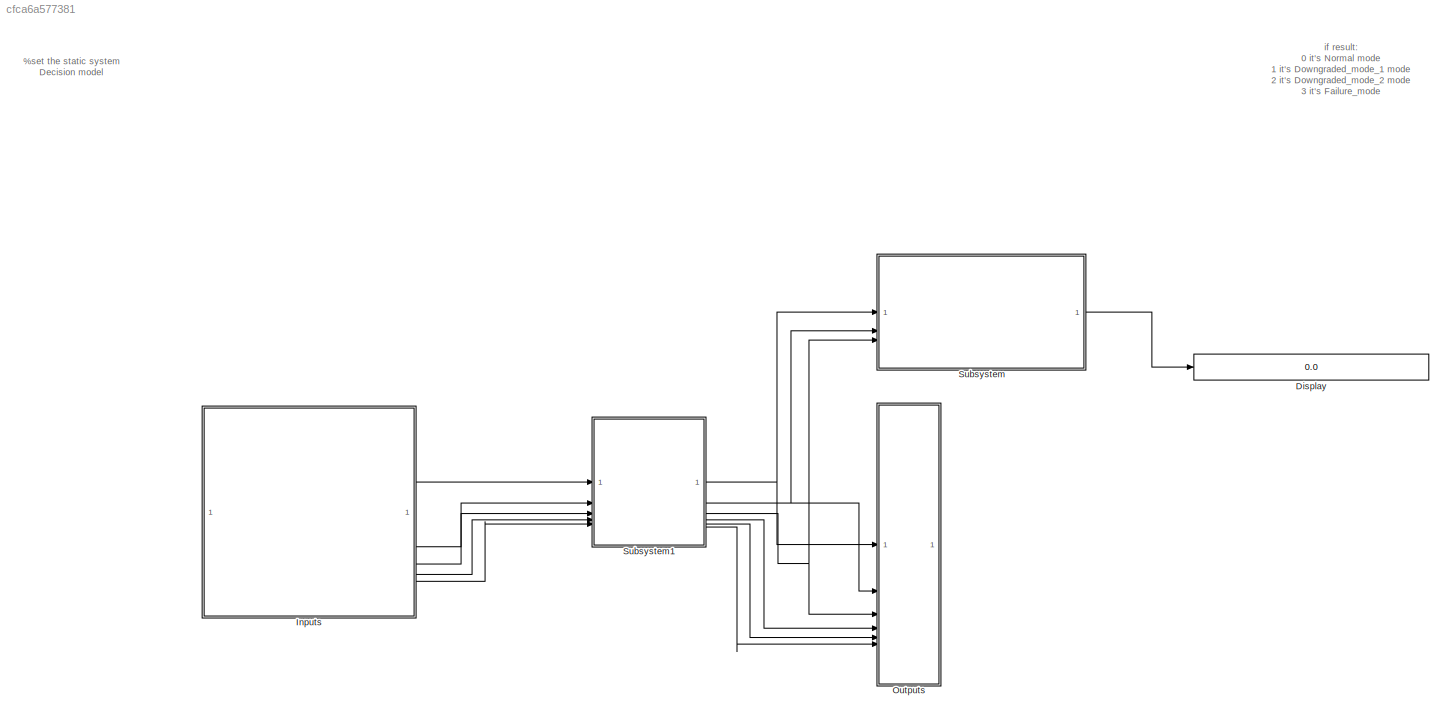
MODEL slx_cfca6a577381
KIND model
CONFIG AbsTol = auto
CONFIG EnableMultiTasking = off
CONFIG FixedStep = auto
CONFIG MaxStep = auto
CONFIG MinStep = auto
CONFIG RelTol = 1e-3
CONFIG SampleTimeConstraint = Unconstrained
CONFIG SolverName = FixedStepAuto
CONFIG StartTime = 0.0
CONFIG StopTime = 10
BLOCK [Display] Display
  Decimation = 1
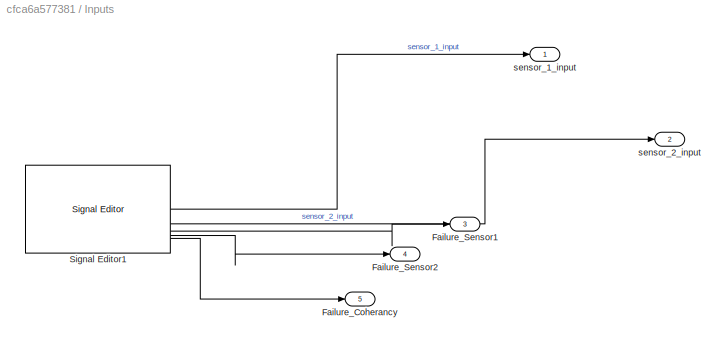
BLOCK [SubSystem] Inputs
BLOCK [Outport] Inputs/Failure_Coherancy
  Port = 5
BLOCK [Outport] Inputs/Failure_Sensor1
  Port = 3
BLOCK [Outport] Inputs/Failure_Sensor2
  Port = 4
BLOCK [Reference] Inputs/Signal Editor1  REF=SignalEditorBlockLib/Signal Editor
  LibrarySourceBlock = simulink/Sources/Signal Editor
  SourceBlock = SignalEditorBlockLib/Signal Editor
  SourceType = SignalEditor
  UserDataPersistent = on
BLOCK [Outport] Inputs/sensor_1_input
BLOCK [Outport] Inputs/sensor_2_input
  Port = 2
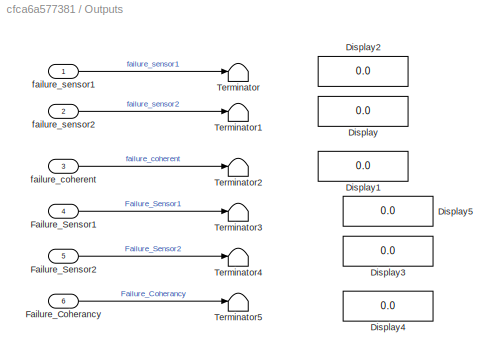
BLOCK [SubSystem] Outputs
  TreatAsAtomicUnit = on
BLOCK [Display] Outputs/Display
  Commented = on
  Decimation = 1
BLOCK [Display] Outputs/Display1
  Commented = on
  Decimation = 1
BLOCK [Display] Outputs/Display2
  Commented = on
  Decimation = 1
BLOCK [Display] Outputs/Display3
  Commented = on
  Decimation = 1
BLOCK [Display] Outputs/Display4
  Commented = on
  Decimation = 1
BLOCK [Display] Outputs/Display5
  Commented = on
  Decimation = 1
BLOCK [Inport] Outputs/Failure_Coherancy
  Port = 6
BLOCK [Inport] Outputs/Failure_Sensor1
  Port = 4
BLOCK [Inport] Outputs/Failure_Sensor2
  Port = 5
BLOCK [Terminator] Outputs/Terminator
BLOCK [Terminator] Outputs/Terminator1
BLOCK [Terminator] Outputs/Terminator2
BLOCK [Terminator] Outputs/Terminator3
BLOCK [Terminator] Outputs/Terminator4
BLOCK [Terminator] Outputs/Terminator5
BLOCK [Inport] Outputs/failure_coherent
  Port = 3
BLOCK [Inport] Outputs/failure_sensor1
BLOCK [Inport] Outputs/failure_sensor2
  Port = 2
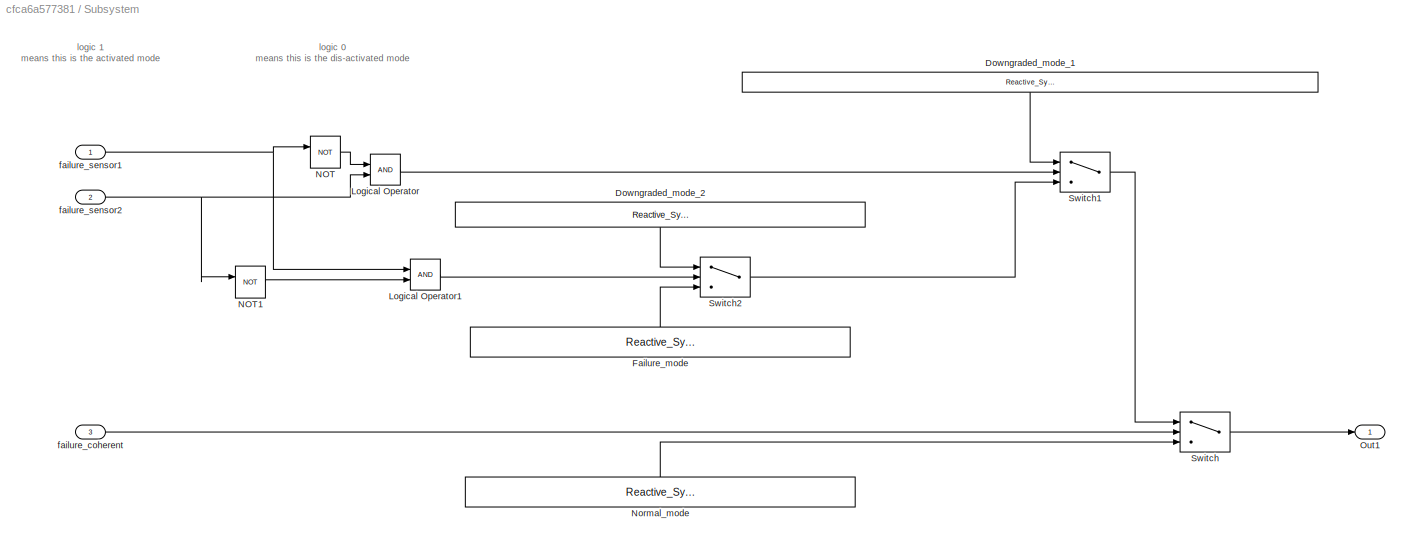
BLOCK [SubSystem] Subsystem
BLOCK [Constant] Subsystem/Downgraded_mode_1
  NameLocation = left
  Value = Reactive_System_Accelerator_Pedal_Failure_Model_Enum.Downgraded_mode_1
BLOCK [Constant] Subsystem/Downgraded_mode_2
  NameLocation = left
  Value = Reactive_System_Accelerator_Pedal_Failure_Model_Enum.Downgraded_mode_2
BLOCK [Constant] Subsystem/Failure_mode
  NameLocation = right
  Value = Reactive_System_Accelerator_Pedal_Failure_Model_Enum.Failure_mode
BLOCK [Logic] Subsystem/Logical Operator
  AllPortsSameDT = off
  OutDataTypeStr = boolean
BLOCK [Logic] Subsystem/Logical Operator1
  AllPortsSameDT = off
  OutDataTypeStr = boolean
BLOCK [Logic] Subsystem/NOT
  AllPortsSameDT = off
  IconShape = distinctive
  Operator = NOT
  OutDataTypeStr = boolean
BLOCK [Logic] Subsystem/NOT1
  AllPortsSameDT = off
  IconShape = distinctive
  Operator = NOT
  OutDataTypeStr = boolean
BLOCK [Constant] Subsystem/Normal_mode
  NameLocation = right
  Value = Reactive_System_Accelerator_Pedal_Failure_Model_Enum.Normal_mode
BLOCK [Outport] Subsystem/Out1
BLOCK [Switch] Subsystem/Switch
  Criteria = u2 ~= 0
  InputSameDT = off
  SaturateOnIntegerOverflow = off
BLOCK [Switch] Subsystem/Switch1
  Criteria = u2 ~= 0
  InputSameDT = off
  SaturateOnIntegerOverflow = off
BLOCK [Switch] Subsystem/Switch2
  Criteria = u2 ~= 0
  InputSameDT = off
  SaturateOnIntegerOverflow = off
BLOCK [Inport] Subsystem/failure_coherent
  Port = 3
BLOCK [Inport] Subsystem/failure_sensor1
BLOCK [Inport] Subsystem/failure_sensor2
  Port = 2
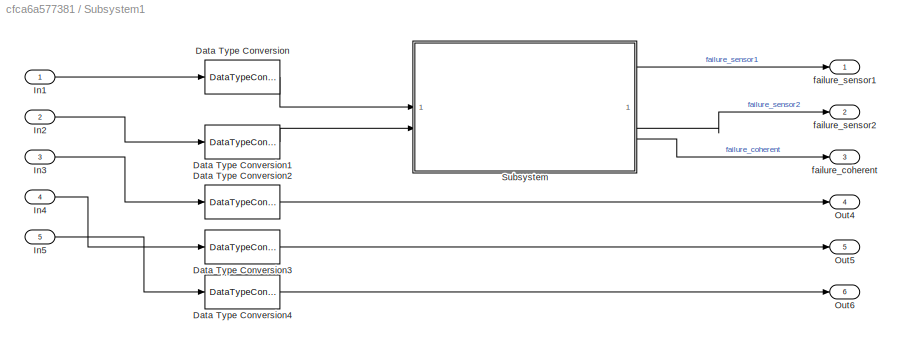
BLOCK [SubSystem] Subsystem1
BLOCK [DataTypeConversion] Subsystem1/Data Type Conversion
  RndMeth = Floor
  SaturateOnIntegerOverflow = off
BLOCK [DataTypeConversion] Subsystem1/Data Type Conversion1
  RndMeth = Floor
  SaturateOnIntegerOverflow = off
BLOCK [DataTypeConversion] Subsystem1/Data Type Conversion2
  OutDataTypeStr = single
  RndMeth = Floor
  SaturateOnIntegerOverflow = off
BLOCK [DataTypeConversion] Subsystem1/Data Type Conversion3
  OutDataTypeStr = single
  RndMeth = Floor
  SaturateOnIntegerOverflow = off
BLOCK [DataTypeConversion] Subsystem1/Data Type Conversion4
  OutDataTypeStr = single
  RndMeth = Floor
  SaturateOnIntegerOverflow = off
BLOCK [Inport] Subsystem1/In1
BLOCK [Inport] Subsystem1/In2
  Port = 2
BLOCK [Inport] Subsystem1/In3
  Port = 3
BLOCK [Inport] Subsystem1/In4
  Port = 4
BLOCK [Inport] Subsystem1/In5
  Port = 5
BLOCK [Outport] Subsystem1/Out4
  Port = 4
BLOCK [Outport] Subsystem1/Out5
  Port = 5
BLOCK [Outport] Subsystem1/Out6
  Port = 6
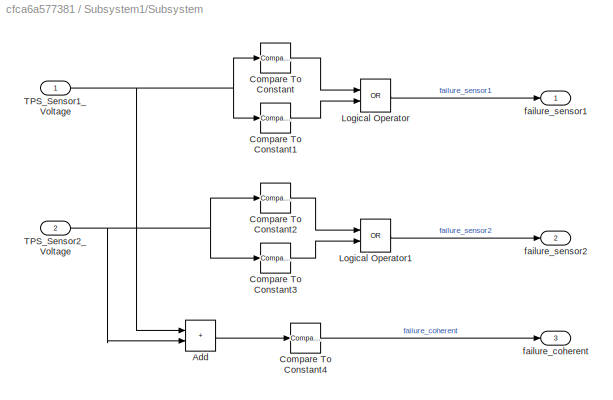
BLOCK [SubSystem] Subsystem1/Subsystem
  TreatAsAtomicUnit = on
BLOCK [Sum] Subsystem1/Subsystem/Add
  IconShape = rectangular
BLOCK [Reference] Subsystem1/Subsystem/Compare To Constant  REF=simulink/Logic and Bit
Operations/Compare
To Constant
  SourceBlock = simulink/Logic and Bit\nOperations/Compare\nTo Constant
  SourceType = Compare To Constant
BLOCK [Reference] Subsystem1/Subsystem/Compare To Constant1  REF=simulink/Logic and Bit
Operations/Compare
To Constant
  SourceBlock = simulink/Logic and Bit\nOperations/Compare\nTo Constant
  SourceType = Compare To Constant
BLOCK [Reference] Subsystem1/Subsystem/Compare To Constant2  REF=simulink/Logic and Bit
Operations/Compare
To Constant
  SourceBlock = simulink/Logic and Bit\nOperations/Compare\nTo Constant
  SourceType = Compare To Constant
BLOCK [Reference] Subsystem1/Subsystem/Compare To Constant3  REF=simulink/Logic and Bit
Operations/Compare
To Constant
  SourceBlock = simulink/Logic and Bit\nOperations/Compare\nTo Constant
  SourceType = Compare To Constant
BLOCK [Reference] Subsystem1/Subsystem/Compare To Constant4  REF=simulink/Logic and Bit
Operations/Compare
To Constant
  SourceBlock = simulink/Logic and Bit\nOperations/Compare\nTo Constant
  SourceType = Compare To Constant
BLOCK [Logic] Subsystem1/Subsystem/Logical Operator
  AllPortsSameDT = off
  Operator = OR
  OutDataTypeStr = boolean
BLOCK [Logic] Subsystem1/Subsystem/Logical Operator1
  AllPortsSameDT = off
  Operator = OR
  OutDataTypeStr = boolean
BLOCK [Inport] Subsystem1/Subsystem/TPS_Sensor1_Voltage
  OutDataTypeStr = single
BLOCK [Inport] Subsystem1/Subsystem/TPS_Sensor2_Voltage
  OutDataTypeStr = single
  Port = 2
BLOCK [Outport] Subsystem1/Subsystem/failure_coherent
  OutDataTypeStr = boolean
  Port = 3
BLOCK [Outport] Subsystem1/Subsystem/failure_sensor1
  OutDataTypeStr = boolean
BLOCK [Outport] Subsystem1/Subsystem/failure_sensor2
  OutDataTypeStr = boolean
  Port = 2
BLOCK [Outport] Subsystem1/failure_coherent
  Port = 3
BLOCK [Outport] Subsystem1/failure_sensor1
BLOCK [Outport] Subsystem1/failure_sensor2
  Port = 2
ANNOTATION (root): %set the static system Decision model
ANNOTATION (root): if result: 0 it's Normal mode 1 it's Downgraded_mode_1 mode 2 it's Downgraded_mode_2 mode 3 it's Failure_mode
ANNOTATION Subsystem: logic 0 means this is the dis-activated mode
ANNOTATION Subsystem: logic 1 means this is the activated mode
LINE Inputs/Signal Editor1:1 -> Inputs/sensor_1_input:1
LINE Inputs/Signal Editor1:2 -> Inputs/sensor_2_input:1
LINE Inputs/Signal Editor1:3 -> Inputs/Failure_Sensor1:1
LINE Inputs/Signal Editor1:4 -> Inputs/Failure_Sensor2:1
LINE Inputs/Signal Editor1:5 -> Inputs/Failure_Coherancy:1
LINE Inputs:1 -> Subsystem1:1
LINE Inputs:2 -> Subsystem1:2
LINE Inputs:3 -> Subsystem1:3
LINE Inputs:4 -> Subsystem1:4
LINE Inputs:5 -> Subsystem1:5
LINE Outputs/Failure_Coherancy:1 -> Outputs/Terminator5:1
LINE Outputs/Failure_Sensor1:1 -> Outputs/Terminator3:1
LINE Outputs/Failure_Sensor2:1 -> Outputs/Terminator4:1
LINE Outputs/failure_coherent:1 -> Outputs/Terminator2:1
LINE Outputs/failure_sensor1:1 -> Outputs/Terminator:1
LINE Outputs/failure_sensor2:1 -> Outputs/Terminator1:1
LINE Subsystem/Downgraded_mode_1:1 -> Subsystem/Switch1:1
LINE Subsystem/Downgraded_mode_2:1 -> Subsystem/Switch2:1
LINE Subsystem/Failure_mode:1 -> Subsystem/Switch2:3
LINE Subsystem/Logical Operator1:1 -> Subsystem/Switch2:2
LINE Subsystem/Logical Operator:1 -> Subsystem/Switch1:2
LINE Subsystem/NOT1:1 -> Subsystem/Logical Operator1:2
LINE Subsystem/NOT:1 -> Subsystem/Logical Operator:1
LINE Subsystem/Normal_mode:1 -> Subsystem/Switch:3
LINE Subsystem/Switch1:1 -> Subsystem/Switch:1
LINE Subsystem/Switch2:1 -> Subsystem/Switch1:3
LINE Subsystem/Switch:1 -> Subsystem/Out1:1
LINE Subsystem/failure_coherent:1 -> Subsystem/Switch:2
NET Subsystem/failure_sensor1:1 -> Subsystem/Logical Operator1:1, Subsystem/NOT:1
NET Subsystem/failure_sensor2:1 -> Subsystem/Logical Operator:2, Subsystem/NOT1:1
LINE Subsystem1/Data Type Conversion1:1 -> Subsystem1/Subsystem:2
LINE Subsystem1/Data Type Conversion2:1 -> Subsystem1/Out4:1
LINE Subsystem1/Data Type Conversion3:1 -> Subsystem1/Out5:1
LINE Subsystem1/Data Type Conversion4:1 -> Subsystem1/Out6:1
LINE Subsystem1/Data Type Conversion:1 -> Subsystem1/Subsystem:1
LINE Subsystem1/In1:1 -> Subsystem1/Data Type Conversion:1
LINE Subsystem1/In2:1 -> Subsystem1/Data Type Conversion1:1
LINE Subsystem1/In3:1 -> Subsystem1/Data Type Conversion2:1
LINE Subsystem1/In4:1 -> Subsystem1/Data Type Conversion3:1
LINE Subsystem1/In5:1 -> Subsystem1/Data Type Conversion4:1
LINE Subsystem1/Subsystem/Add:1 -> Subsystem1/Subsystem/Compare To Constant4:1
LINE Subsystem1/Subsystem/Compare To Constant1:1 -> Subsystem1/Subsystem/Logical Operator:2
LINE Subsystem1/Subsystem/Compare To Constant2:1 -> Subsystem1/Subsystem/Logical Operator1:1
LINE Subsystem1/Subsystem/Compare To Constant3:1 -> Subsystem1/Subsystem/Logical Operator1:2
LINE Subsystem1/Subsystem/Compare To Constant4:1 -> Subsystem1/Subsystem/failure_coherent:1
LINE Subsystem1/Subsystem/Compare To Constant:1 -> Subsystem1/Subsystem/Logical Operator:1
LINE Subsystem1/Subsystem/Logical Operator1:1 -> Subsystem1/Subsystem/failure_sensor2:1
LINE Subsystem1/Subsystem/Logical Operator:1 -> Subsystem1/Subsystem/failure_sensor1:1
NET Subsystem1/Subsystem/TPS_Sensor1_Voltage:1 -> Subsystem1/Subsystem/Add:1, Subsystem1/Subsystem/Compare To Constant1:1, Subsystem1/Subsystem/Compare To Constant:1
NET Subsystem1/Subsystem/TPS_Sensor2_Voltage:1 -> Subsystem1/Subsystem/Add:2, Subsystem1/Subsystem/Compare To Constant2:1, Subsystem1/Subsystem/Compare To Constant3:1
LINE Subsystem1/Subsystem:1 -> Subsystem1/failure_sensor1:1
LINE Subsystem1/Subsystem:2 -> Subsystem1/failure_sensor2:1
LINE Subsystem1/Subsystem:3 -> Subsystem1/failure_coherent:1
NET Subsystem1:1 -> Outputs:1, Subsystem:1
NET Subsystem1:2 -> Outputs:2, Subsystem:2
NET Subsystem1:3 -> Outputs:3, Subsystem:3
LINE Subsystem1:4 -> Outputs:4
LINE Subsystem1:5 -> Outputs:5
LINE Subsystem1:6 -> Outputs:6
LINE Subsystem:1 -> Display:1
note: NET lines group one-source signal fan-out (src -> all destinations, sorted); 1:1 wires keep LINE
